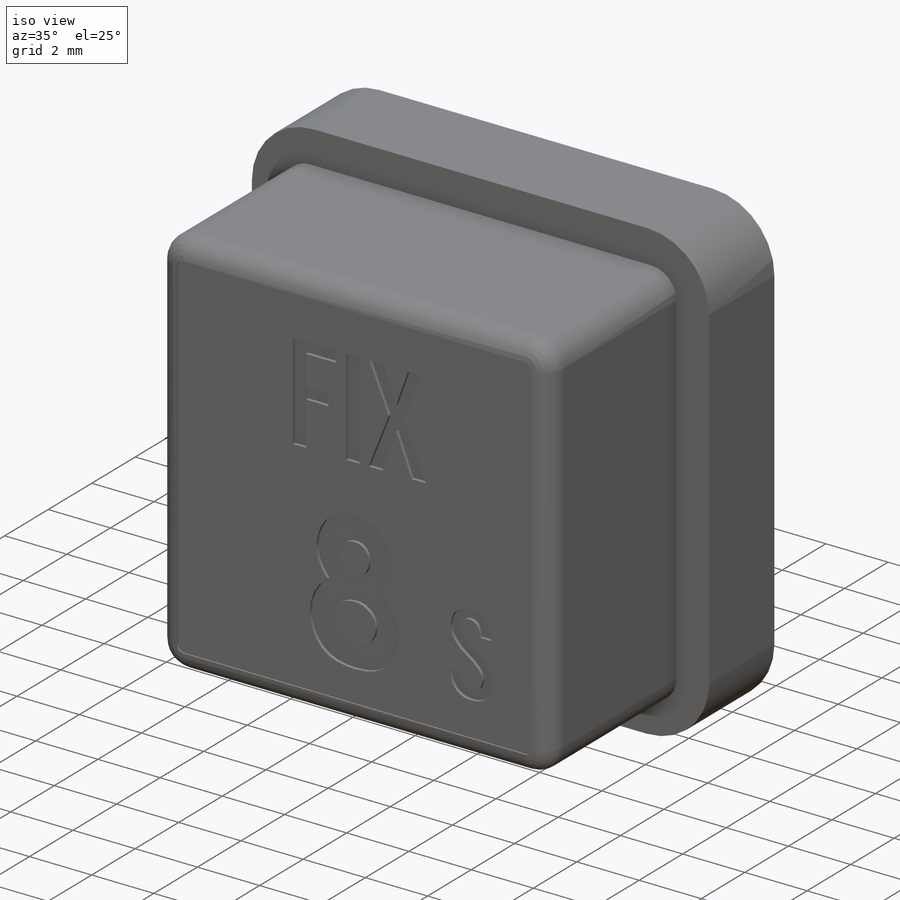
[diagram: iso view]
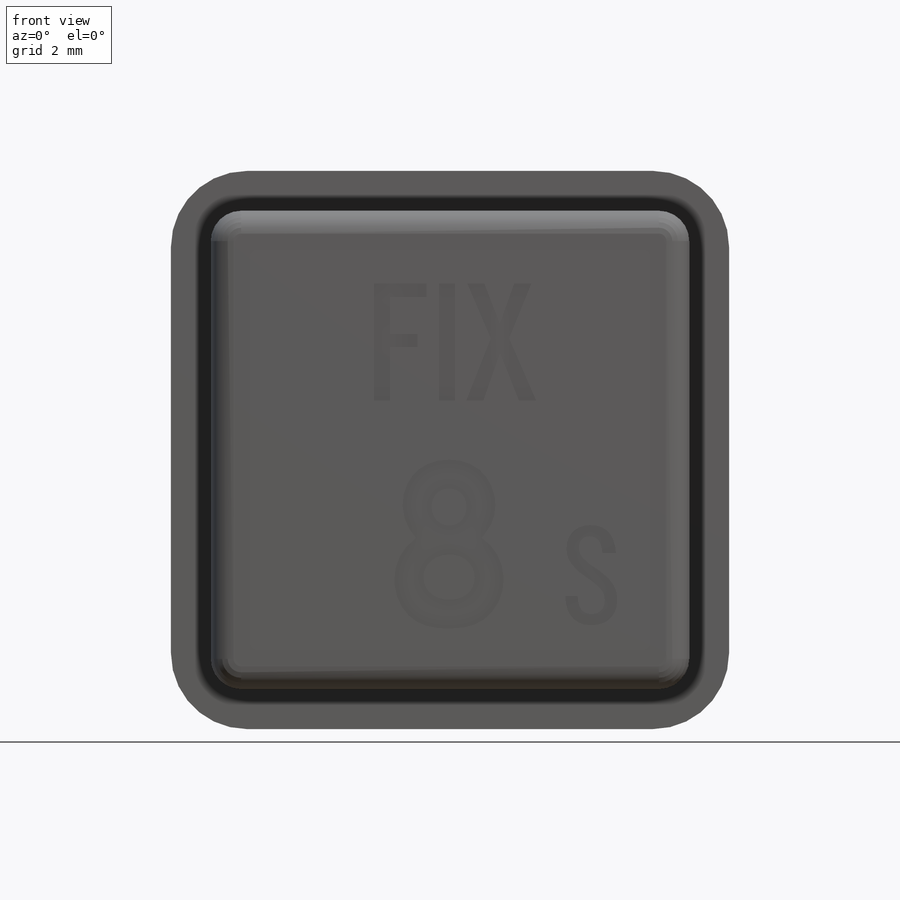
[diagram: front view]
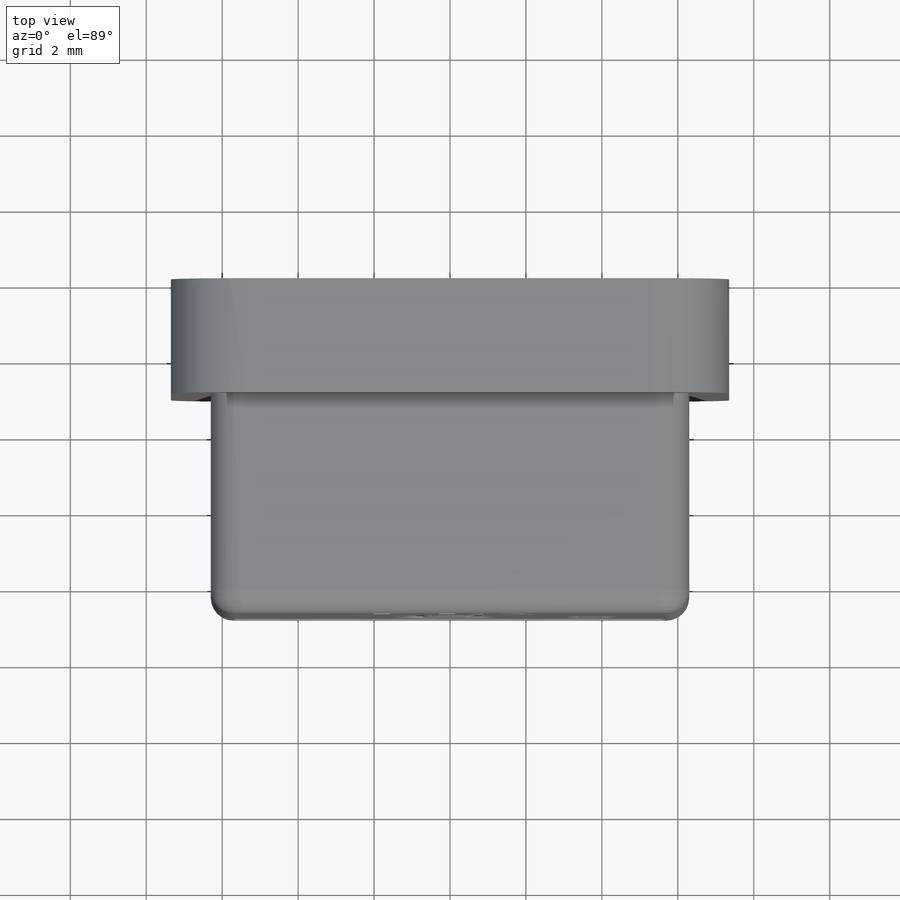
[diagram: top view]
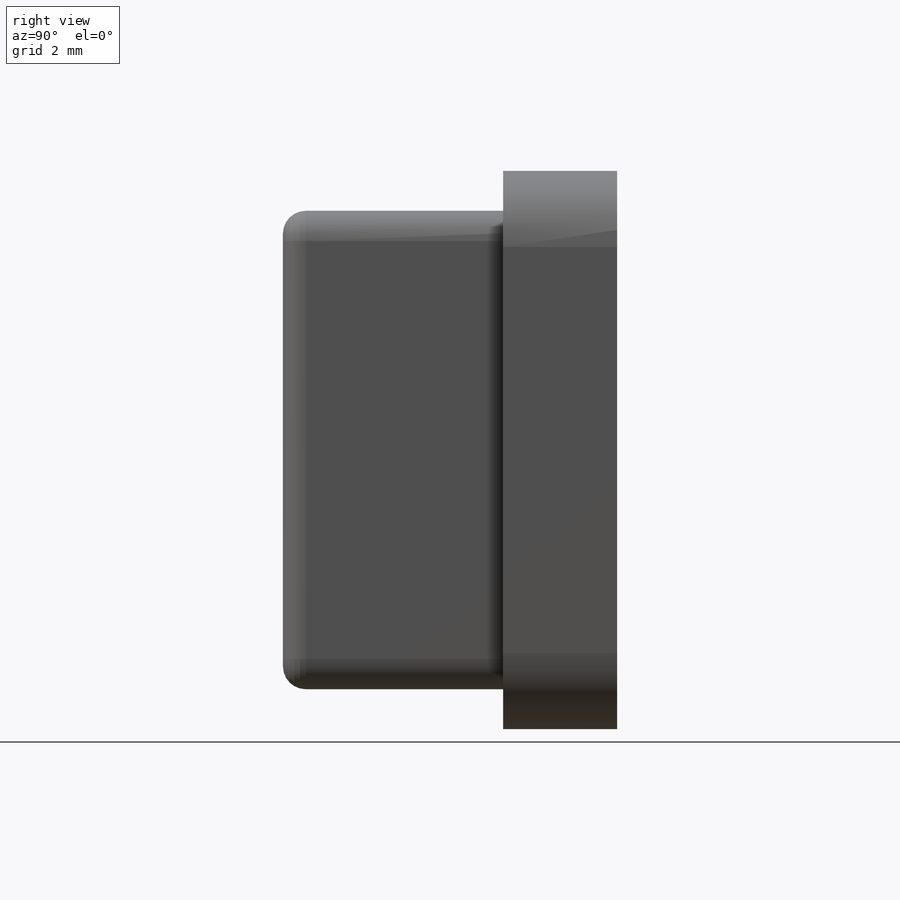
[diagram: right view]
SOLIDWORKS PART (.sldprt)
format: sldprt  version: not decoded by parser v0  size: 383,488 bytes
history: native  units: mm
features: sketch x4, plane x3, fillet x3, extrude x2, cut_extrude x2, material x1 (+9 scaffold rows collapsed)
feature tree (24):
  scaffold x9  (default folders/planes/origin — collapsed)
  material  "PMMA"
  plane  "Přední rovina"
  plane  "Horní rovina"
  plane  "Pravá rovina"
  sketch  "Skica1"  dims[D1=14.7mm]
  extrude  "Přidat vysunutím1"  Depth=3mm
  fillet  "Zaoblit1"  Radius=2mm
  sketch  "Skica2"  dims[D1=12.6mm]
  extrude  "Přidat vysunutím2"  Depth=5.8mm
  fillet  "Zaoblit2"  Radius=0.8mm
  fillet  "Zaoblit3"  Radius=0.6mm
  sketch  "Skica5"  dims[D3=3.92mm D4=10.0mm D1=1.3mm D2=4.6mm]
  cut_extrude  "Odebrat vysunutím1"  Depth=0.15mm
  sketch  "Skica6"  dims[D1=0.0mm]
  cut_extrude  "Odebrat vysunutím2"  Depth=0.05mm
decode coverage: 11 of 11 modeling features carry decoded parameters
note: suppression state not decoded; provenance and decode notes live in map.json
